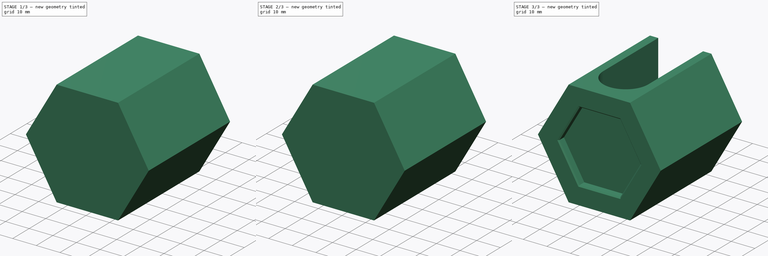
[diagram: build sequence overview — one tinted view per stage of 3, left to right]
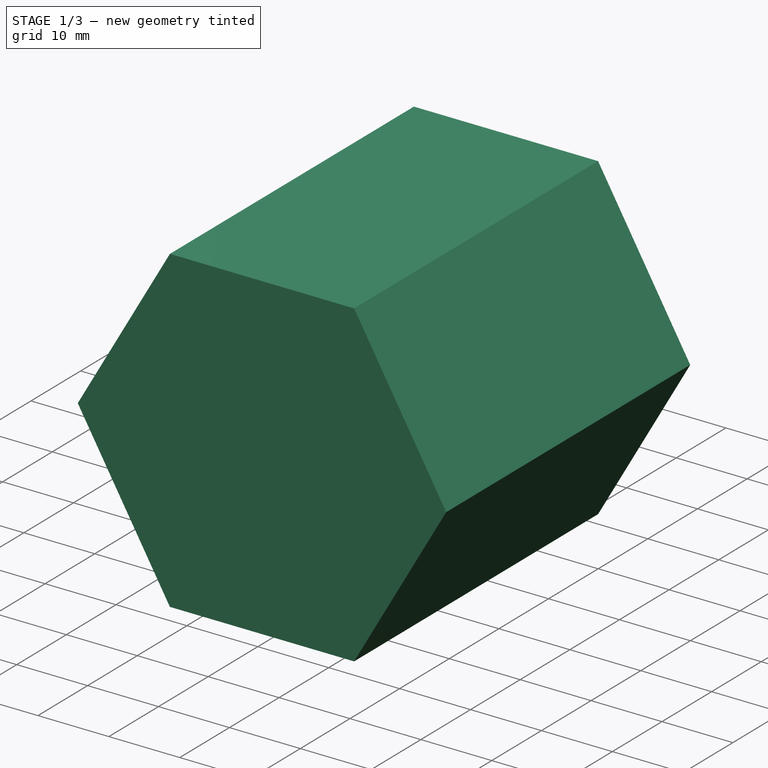
[diagram: stage 1 of 3 — iso view after this stage's code; geometry added in this stage tinted green]
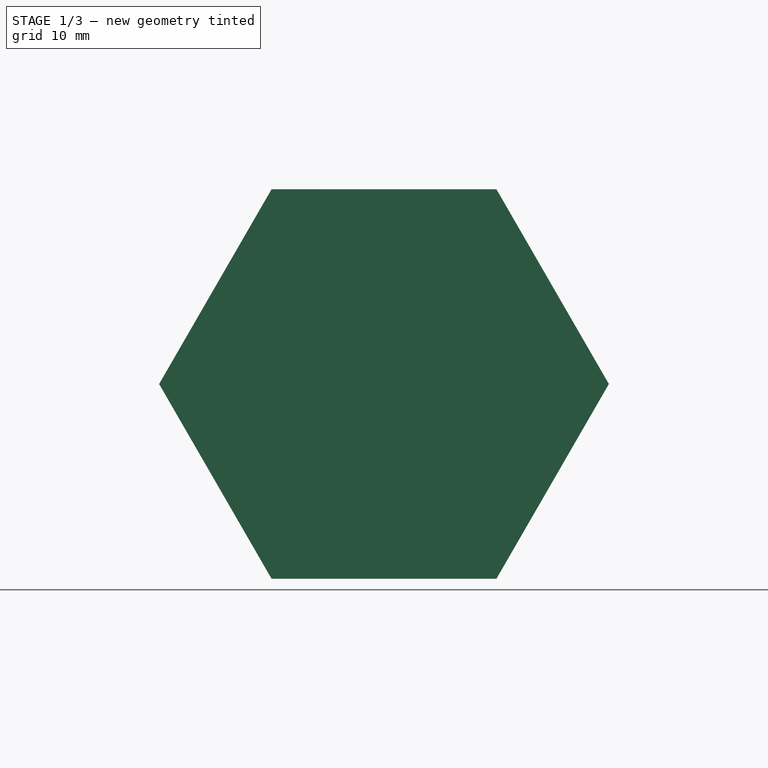
[diagram: stage 1 of 3 — front view after this stage's code; geometry added in this stage tinted green]
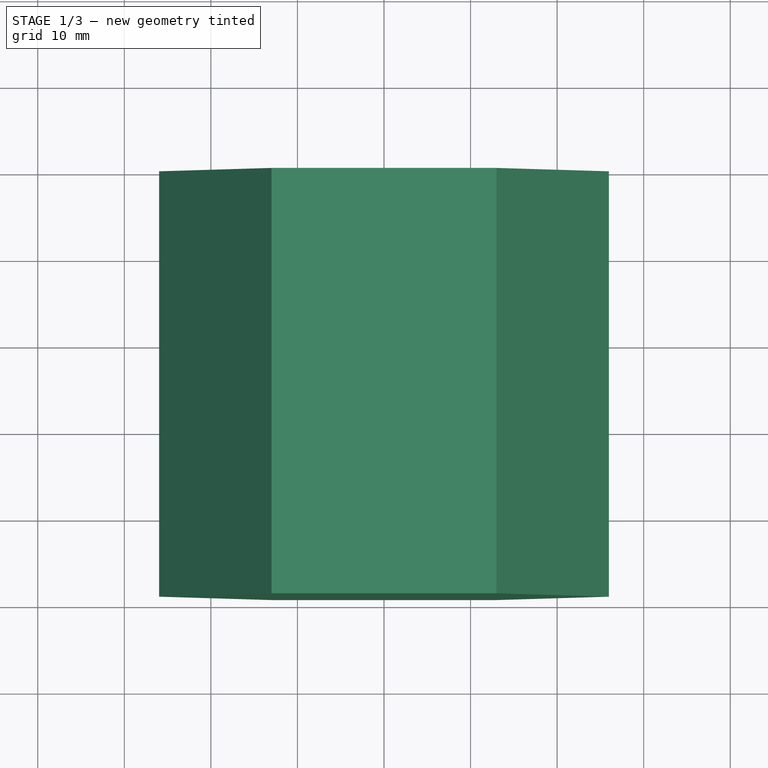
[diagram: stage 1 of 3 — top view after this stage's code; geometry added in this stage tinted green]
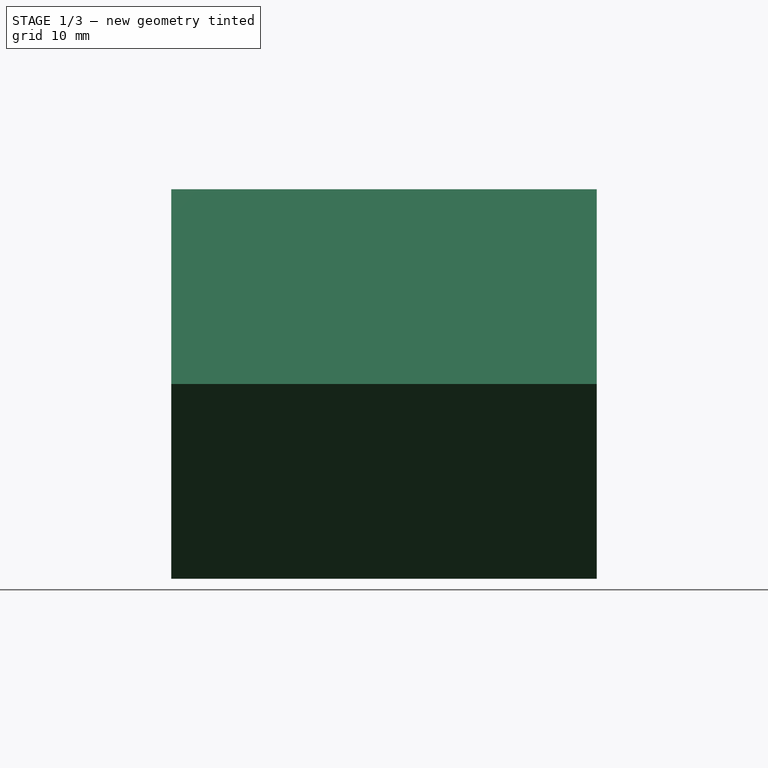
[diagram: stage 1 of 3 — right view after this stage's code; geometry added in this stage tinted green]
FCSTD DOCUMENT  (FreeCAD 0.19R24212 (Git))
Label: saeule
License: All rights reserved
LicenseURL: http://en.wikipedia.org/wiki/All_rights_reserved
objects: Sketcher::SketchObject×3, PartDesign::Pocket×2, PartDesign::Pad×1, PartDesign::Chamfer×1, PartDesign::Body×1, Part::Mirroring×1
note: 13 computed .brp shape members not serialized (recipe doc carries the construction recipe); baked Part::Feature solids carry a one-line shape summary decoded from their .brp

FEATURE [Sketcher::SketchObject] Sketch017
  FullyConstrained = true
  MapMode = 5
  Placement = pos=(0,0,-1.11e-14) rot=(-1,0,0;1.5708rad)
  sketch-geometry (7):
    g0: LineSegment StartX=17.205 StartY=0 StartZ=0 EndX=8.60252 EndY=14.9 EndZ=0
    g1: LineSegment StartX=8.60252 StartY=14.9 StartZ=0 EndX=-8.60252 EndY=14.9 EndZ=0
    g2: LineSegment StartX=-8.60252 StartY=14.9 StartZ=0 EndX=-17.205 EndY=-3.6e-15 EndZ=0
    g3: LineSegment StartX=-17.205 StartY=-3.6e-15 StartZ=0 EndX=-8.60252 EndY=-14.9 EndZ=0
    g4: LineSegment StartX=-8.60252 StartY=-14.9 StartZ=0 EndX=8.60252 EndY=-14.9 EndZ=0
    g5: LineSegment StartX=8.60252 StartY=-14.9 StartZ=0 EndX=17.205 EndY=0 EndZ=0
    g6: Circle CenterX=0 CenterY=0 CenterZ=0 NormalX=0 NormalY=0 NormalZ=1 AngleXU=0 Radius=17.205
  constraints (16):
    c: Coincident(g0,g1)
    c: Coincident(g1,g2)
    c: Coincident(g2,g3)
    c: Coincident(g3,g4)
    c: Coincident(g4,g5)
    c: Coincident(g5,g0)
    c: Equal(g0, g1-g5) x5
    c: PointOnObject(g0,g6)
    c: PointOnObject(g1,g6)
    c: PointOnObject(g2,g6)
    c: PointOnObject(g3,g6)
    c: PointOnObject(g4,g6)
    c: PointOnObject(g5,g6)
    c: Coincident(g6,g-1)
    c: PointOnObject(g0,g-1)
    c: DistanceY(g4,g0) = 29.8
FEATURE [Sketcher::SketchObject] Sketch
  FullyConstrained = true
  MapMode = 5
  Placement = pos=(0,0,0) rot=(1,0,0;1.5708rad)
  Support = -> [XZ_Plane]
  sketch-geometry (7):
    g0: LineSegment StartX=25.9808 StartY=0 StartZ=0 EndX=12.9904 EndY=22.5 EndZ=0
    g1: LineSegment StartX=12.9904 StartY=22.5 StartZ=0 EndX=-12.9904 EndY=22.5 EndZ=0
    g2: LineSegment StartX=-12.9904 StartY=22.5 StartZ=0 EndX=-25.9808 EndY=5.436e-13 EndZ=0
    g3: LineSegment StartX=-25.9808 StartY=5.436e-13 StartZ=0 EndX=-12.9904 EndY=-22.5 EndZ=0
    g4: LineSegment StartX=-12.9904 StartY=-22.5 StartZ=0 EndX=12.9904 EndY=-22.5 EndZ=0
    g5: LineSegment StartX=12.9904 StartY=-22.5 StartZ=0 EndX=25.9808 EndY=0 EndZ=0
    g6: Circle CenterX=0 CenterY=0 CenterZ=0 NormalX=0 NormalY=0 NormalZ=1 AngleXU=0 Radius=25.9808
  constraints (16):
    c: Coincident(g0,g1)
    c: Coincident(g1,g2)
    c: Coincident(g2,g3)
    c: Coincident(g3,g4)
    c: Coincident(g4,g5)
    c: Coincident(g5,g0)
    c: Equal(g0, g1-g5) x5
    c: PointOnObject(g0,g6)
    c: PointOnObject(g1,g6)
    c: PointOnObject(g2,g6)
    c: PointOnObject(g3,g6)
    c: PointOnObject(g4,g6)
    c: PointOnObject(g5,g6)
    c: Coincident(g6,g-1)
    c: PointOnObject(g5,g-1)
    c: DistanceY(g4,g0) = 45
FEATURE [PartDesign::Pad] Pad
  Direction = (1,1,1)
  Length = 49.15
  Length2 = 100
  Placement = pos=(0,0,0) rot=(1,0,0;1.5708rad)
  Profile = -> Sketch
  Type = 0
  expr: Length = 98.3 / 2
FEATURE [PartDesign::Pocket] Pocket
  BaseFeature = -> Pad
  Length = 3.2
  Length2 = 100
  Placement = pos=(0,0,0) rot=(1,0,0;1.5708rad)
  Profile = -> Sketch017
  Type = 0
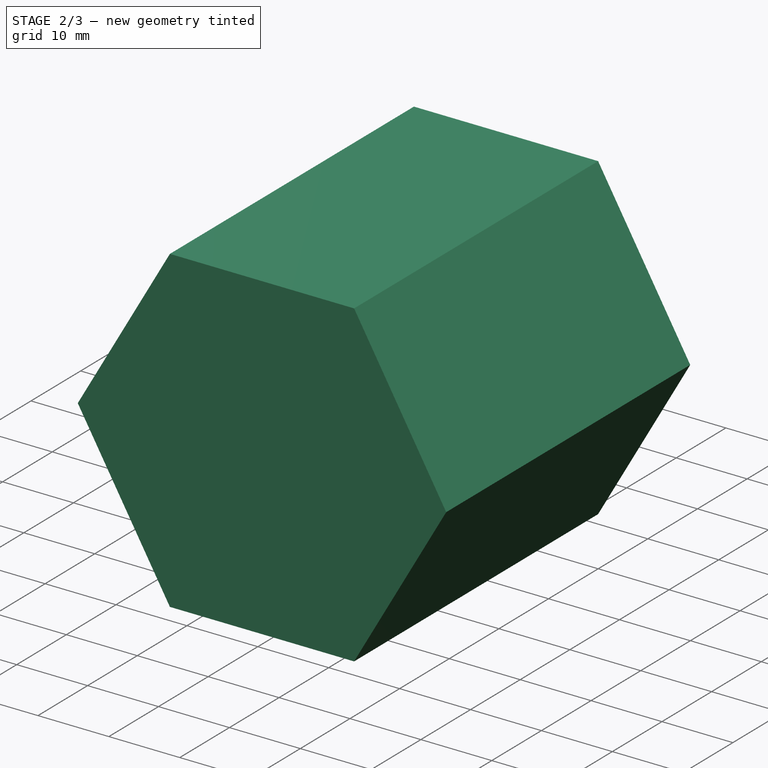
[diagram: stage 2 of 3 — iso view after this stage's code; geometry added in this stage tinted green]
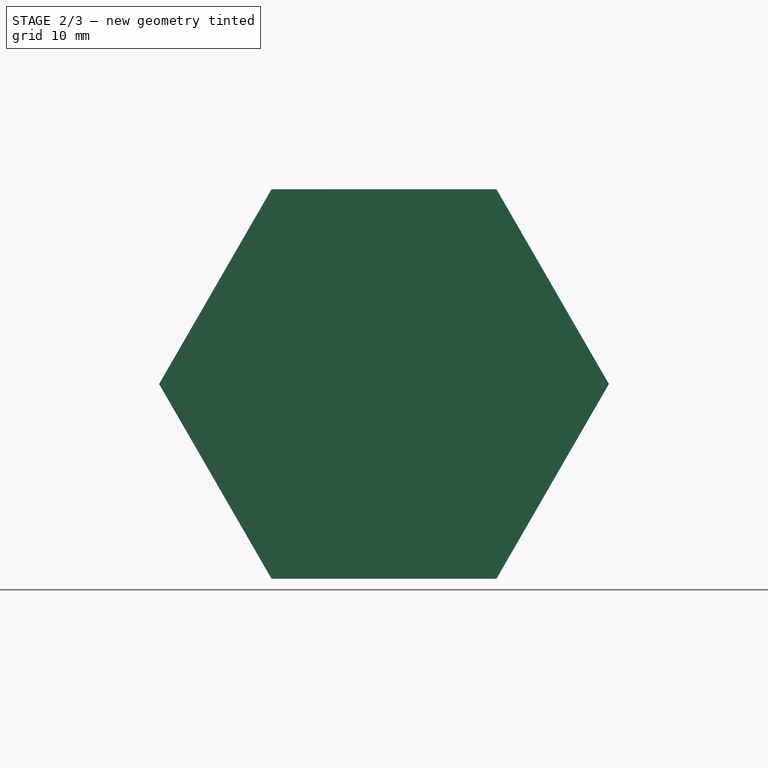
[diagram: stage 2 of 3 — front view after this stage's code; geometry added in this stage tinted green]
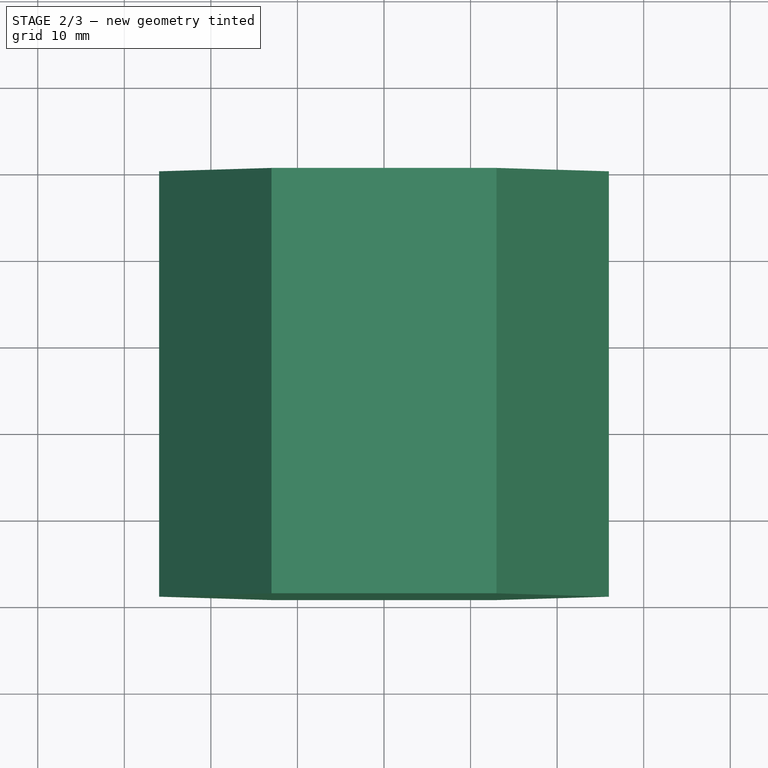
[diagram: stage 2 of 3 — top view after this stage's code; geometry added in this stage tinted green]
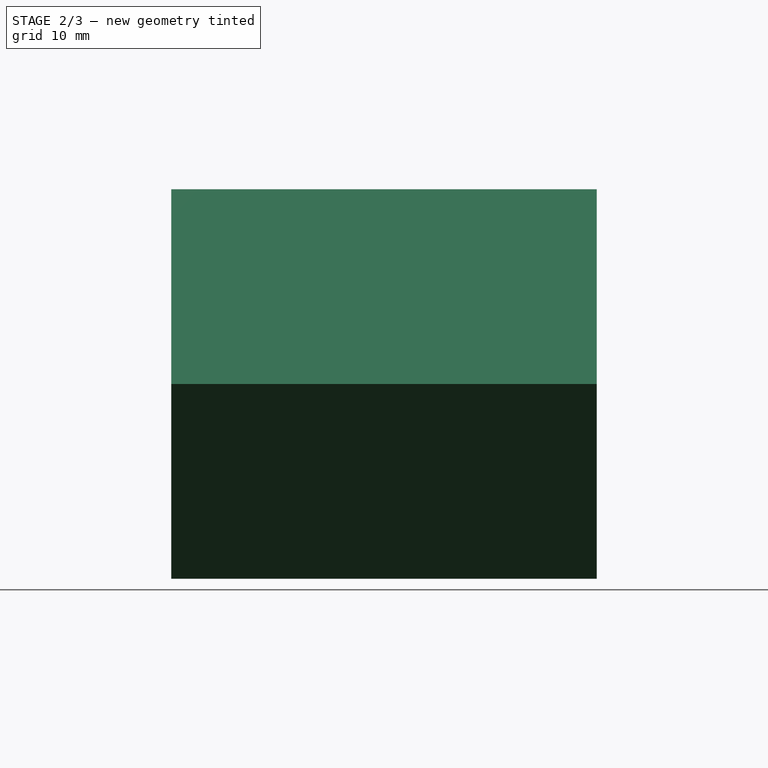
[diagram: stage 2 of 3 — right view after this stage's code; geometry added in this stage tinted green]
FEATURE [PartDesign::Chamfer] Chamfer
  Angle = 45
  Base = -> Pocket [Edge14,Edge19,Edge18,Edge17,Edge16,Edge15]
  BaseFeature = -> Pocket
  ChamferType = 0
  FlipDirection = false
  Placement = pos=(0,0,0) rot=(1,0,0;1.5708rad)
  Size = 0.5
  Size2 = 1
  SupportTransform = false
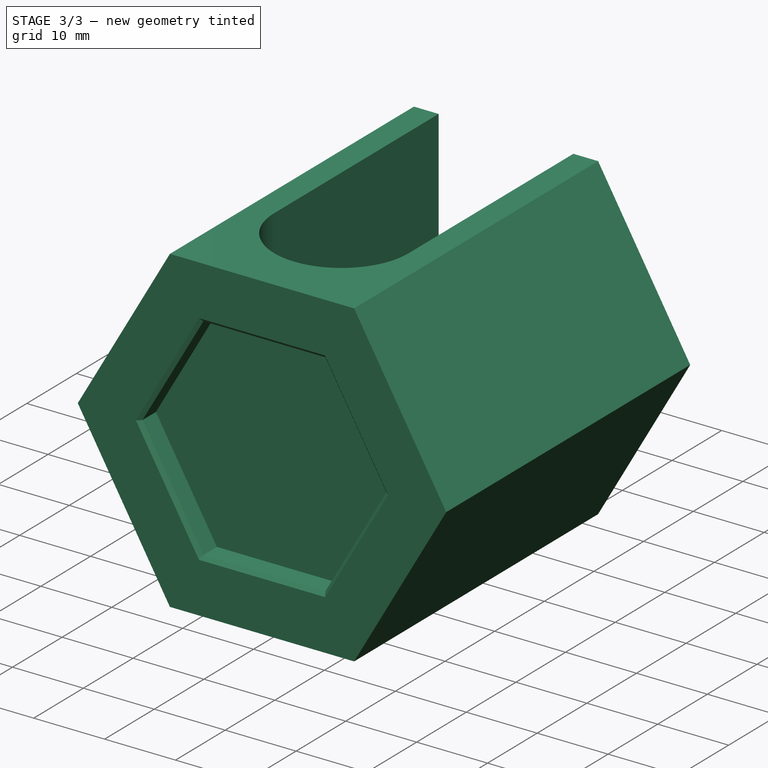
[diagram: stage 3 of 3 — iso view after this stage's code; geometry added in this stage tinted green]
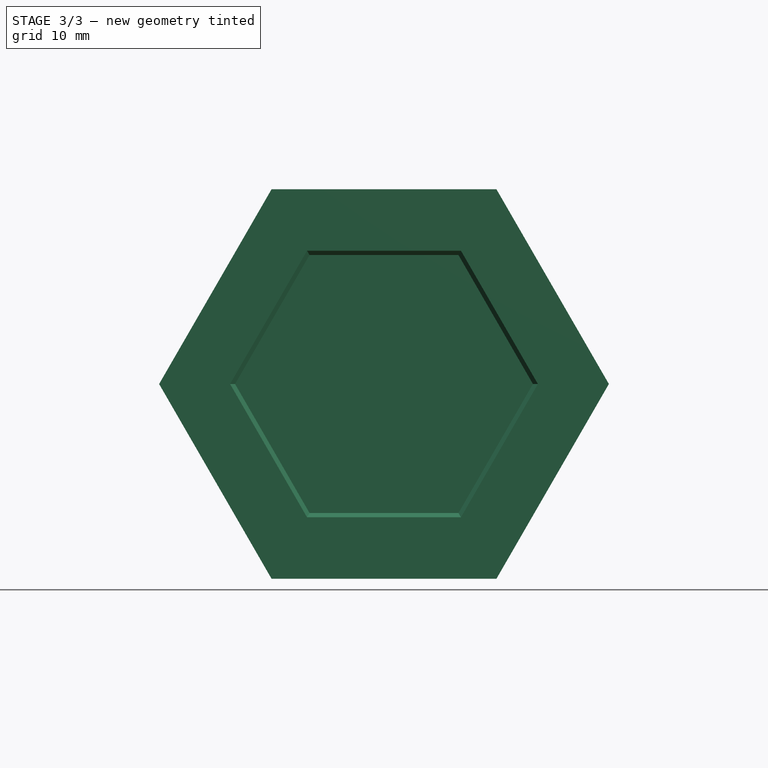
[diagram: stage 3 of 3 — front view after this stage's code; geometry added in this stage tinted green]
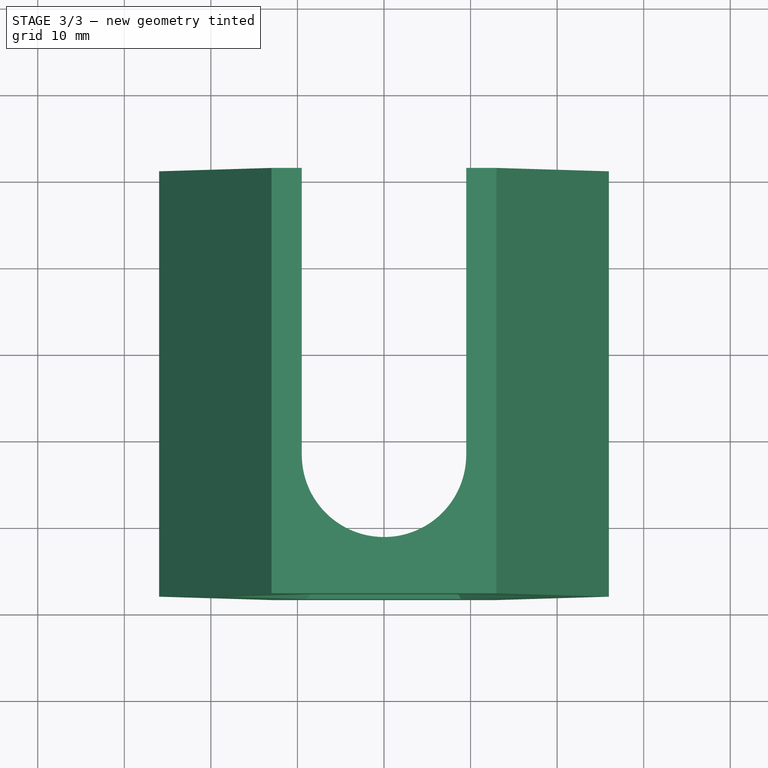
[diagram: stage 3 of 3 — top view after this stage's code; geometry added in this stage tinted green]
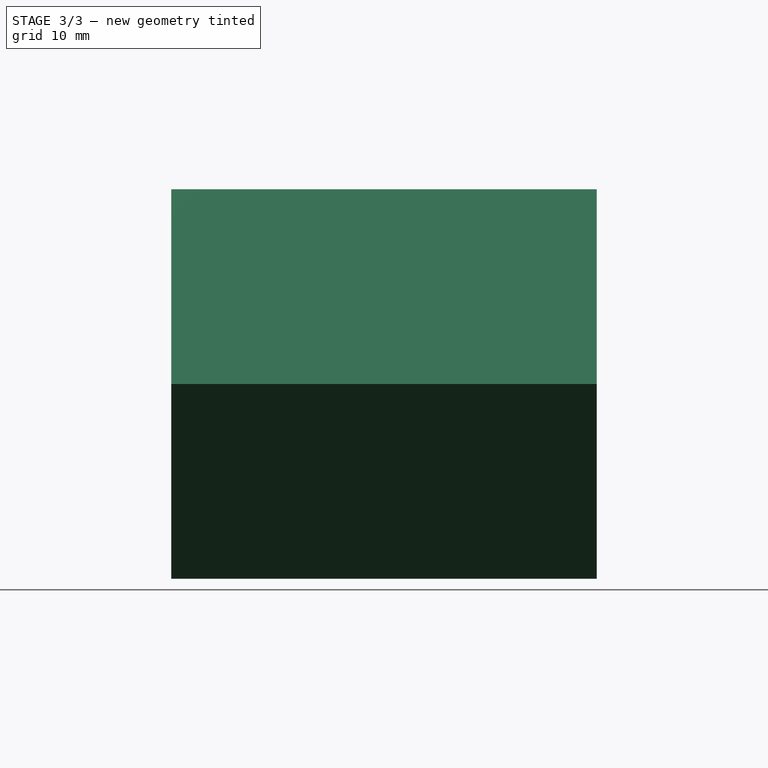
[diagram: stage 3 of 3 — right view after this stage's code; geometry added in this stage tinted green]
FEATURE [Sketcher::SketchObject] Sketch018
  ExternalGeometry = -> [Chamfer]
  FullyConstrained = true
  MapMode = 5
  Placement = pos=(2.061e-13,2.5e-14,22.5) rot=(0,0,1;3.14159rad)
  Support = -> [Chamfer]
  sketch-geometry (4):
    g0: ArcOfCircle CenterX=0 CenterY=16 CenterZ=0 NormalX=0 NormalY=0 NormalZ=1 AngleXU=0 Radius=9.5 StartAngle=3.14159 EndAngle=6.28319
    g1: LineSegment StartX=-9.5 StartY=16 StartZ=0 EndX=-9.5 EndY=49.15 EndZ=0
    g2: LineSegment StartX=-9.5 StartY=49.15 StartZ=0 EndX=9.5 EndY=49.15 EndZ=0
    g3: LineSegment StartX=9.5 StartY=49.15 StartZ=0 EndX=9.5 EndY=16 EndZ=0
  constraints (11):
    c: PointOnObject(g0,g-2)
    c: Tangent(g0,g1) = 1.5708
    c: Coincident(g1,g2)
    c: Horizontal(g2)
    c: Coincident(g2,g3)
    c: Tangent(g3,g0) = 1.5708
    c: Vertical(g1)
    c: PointOnObject(g1,g-3)
    c: Vertical(g3)
    c: DistanceX(g1,g2) = 19
    c: DistanceY(g-1,g0) = 16
FEATURE [PartDesign::Pocket] Pocket001
  BaseFeature = -> Chamfer
  Length = 5
  Length2 = 100
  Placement = pos=(0,0,0) rot=(1,0,0;1.5708rad)
  Profile = -> Sketch018
  Type = 1
FEATURE [PartDesign::Body] Body
  Group = -> [Sketch,Pad,Sketch017,Pocket,Chamfer,Sketch018,Pocket001]
  Origin = -> Origin
  Tip = -> Pocket001
FEATURE [Part::Mirroring] Part__Mirroring  label="Body (Mirror #1)"
  Base = (0,0,0)
  Normal = (0,1,0)
  Placement = pos=(0,-98.3,0) rot=(0,0,1;0rad)
  Source = -> Body
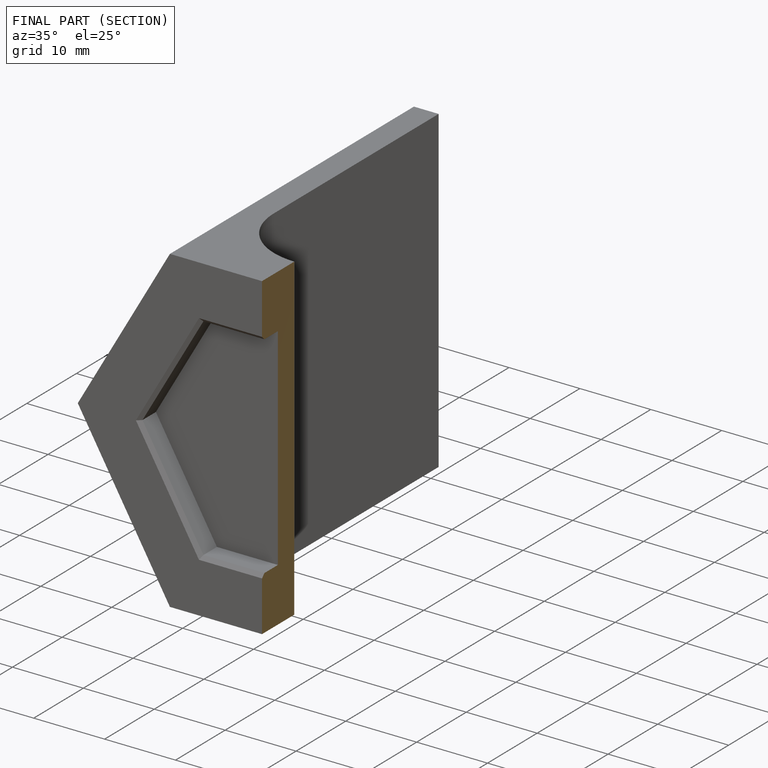
[diagram: finished part — half-section view (interior)]
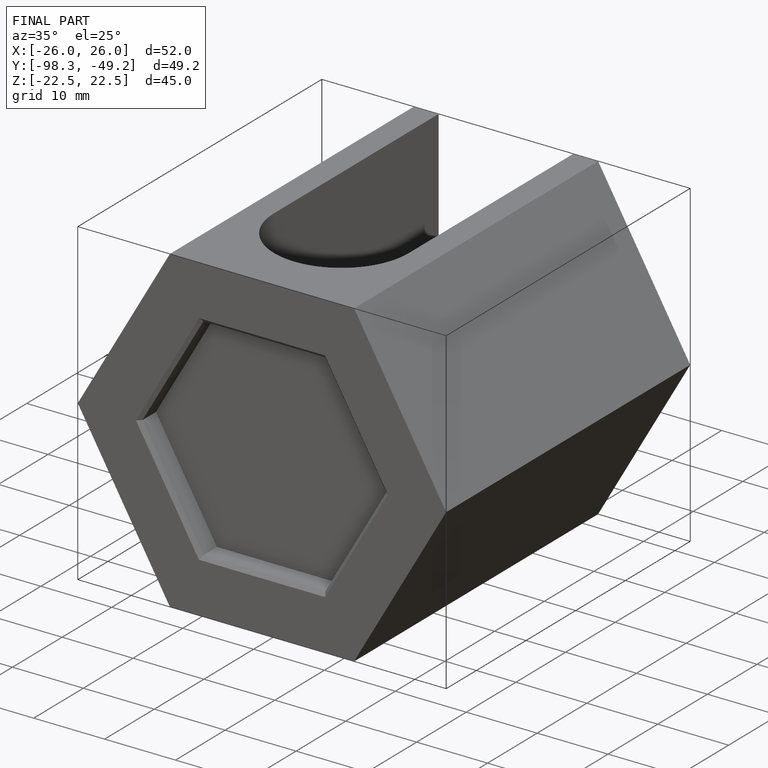
[diagram: finished part — iso view with bounding-box wireframe]
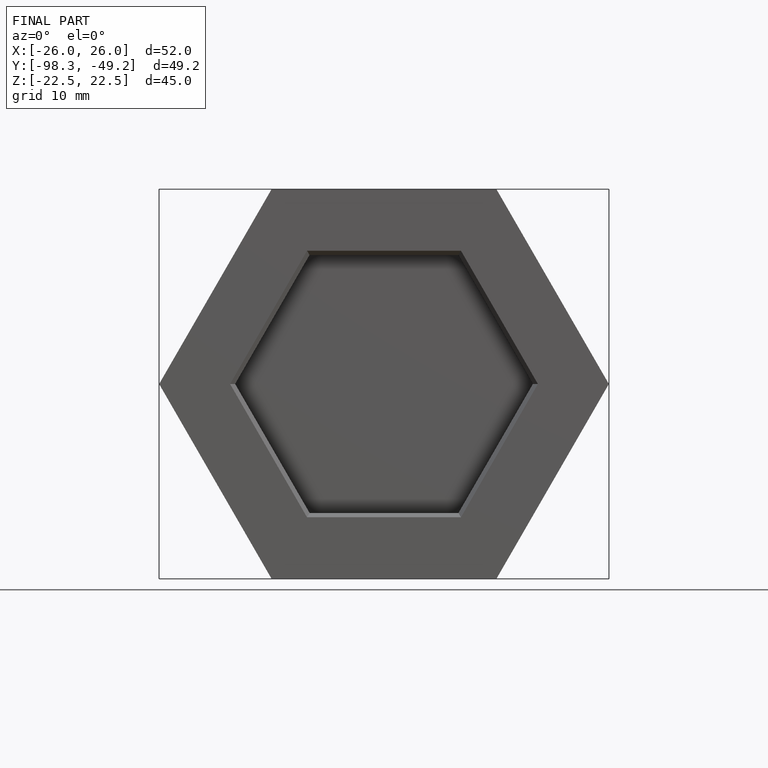
[diagram: finished part — front view with bounding-box wireframe]
